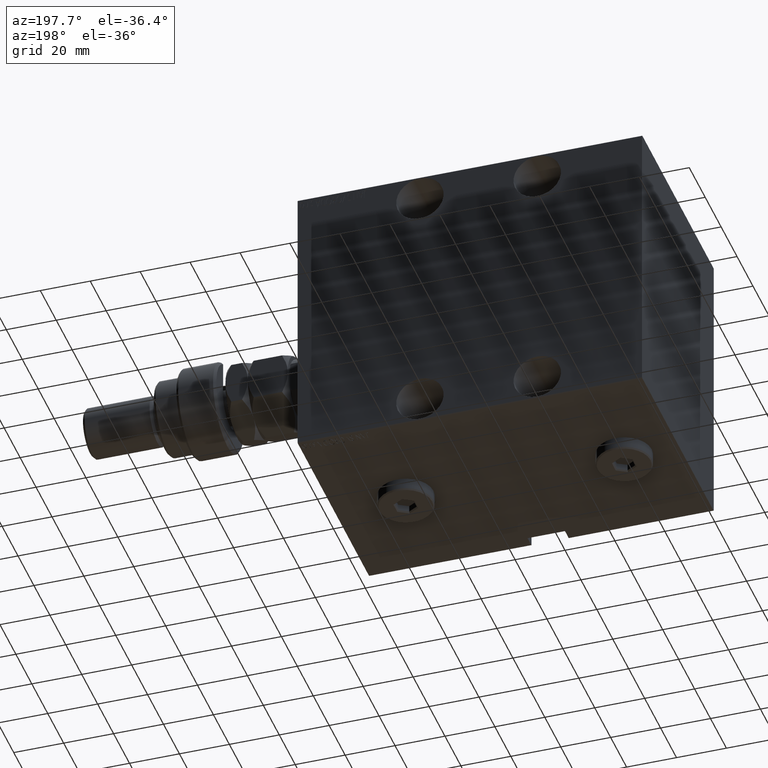
[diagram: clean part render]
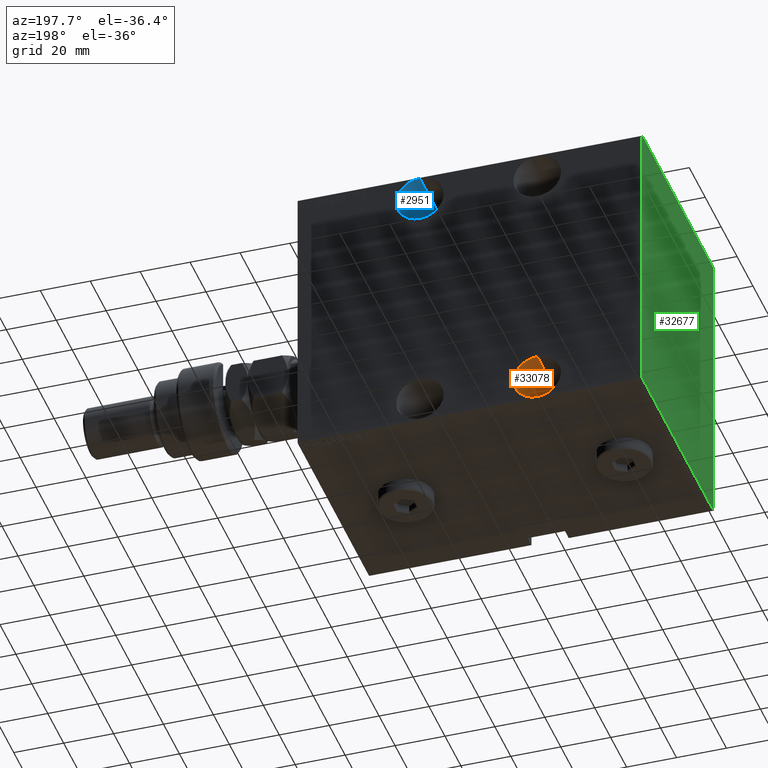
[diagram: same view with three faces highlighted in distinct colors, each labeled with its STEP entity id]
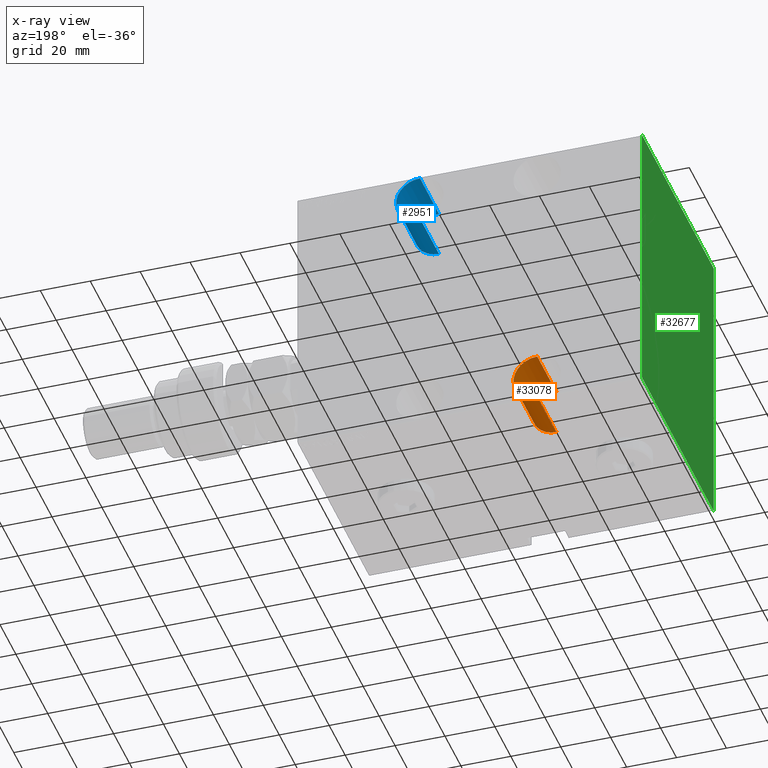
[diagram: x-ray of the same camera — body ghosted, the three highlighted faces saturated]
A machine part, auxiliary view with three faces highlighted in distinct colors.
The next image is the same camera in x-ray (body ghosted, the three faces saturated) — at least one of them is partly hidden behind the body in this view.
Their STEP definitions:

[orange] entity #33078 — the highlighted cylindrical surface (edge-blend (fillet) strip) has radius 9.5 mm, axis along (0, 1, -0).
#128 = CARTESIAN_POINT ( 'NONE',  ( 95.99999999999997158, -45.00000000000000000, -47.50000000000000000 ) ) ;
#2702 = CYLINDRICAL_SURFACE ( 'NONE', #27959, 9.499999999999994671 ) ;
#3069 = CIRCLE ( 'NONE', #29783, 9.499999999999994671 ) ;
#4781 = DIRECTION ( 'NONE',  ( -0.000000000000000000, -1.000000000000000000, -0.000000000000000000 ) ) ;
#7225 = LINE ( 'NONE', #36365, #42357 ) ;
#8899 = VERTEX_POINT ( 'NONE', #9394 ) ;
#9252 = VERTEX_POINT ( 'NONE', #32749 ) ;
#9394 = CARTESIAN_POINT ( 'NONE',  ( 95.99999999999997158, -45.00000000000000000, -38.00000000000000711 ) ) ;
#12749 = FACE_OUTER_BOUND ( 'NONE', #44956, .T. ) ;
#14692 = DIRECTION ( 'NONE',  ( 0.000000000000000000, -1.000000000000000000, 0.000000000000000000 ) ) ;
#17565 = EDGE_CURVE ( 'NONE', #9252, #45311, #3069, .T. ) ;
#19644 = EDGE_CURVE ( 'NONE', #45311, #37850, #40837, .T. ) ;
#21184 = CARTESIAN_POINT ( 'NONE',  ( 95.99999999999997158, -45.00000000000000000, -56.99999999999999289 ) ) ;
#22041 = DIRECTION ( 'NONE',  ( -0.000000000000000000, -1.000000000000000000, -0.000000000000000000 ) ) ;
#22719 = CARTESIAN_POINT ( 'NONE',  ( 95.99999999999997158, -20.99999999999999645, -56.99999999999999289 ) ) ;
#27316 = DIRECTION ( 'NONE',  ( 0.000000000000000000, 0.000000000000000000, -1.000000000000000000 ) ) ;
#27959 = AXIS2_PLACEMENT_3D ( 'NONE', #31622, #39001, #27316 ) ;
#28292 = CARTESIAN_POINT ( 'NONE',  ( 95.99999999999997158, -20.99999999999999645, -56.99999999999999289 ) ) ;
#28875 = CARTESIAN_POINT ( 'NONE',  ( 95.99999999999997158, -20.99999999999999645, -47.50000000000000000 ) ) ;
#29365 = ORIENTED_EDGE ( 'NONE', *, *, #17565, .F. ) ;
#29783 = AXIS2_PLACEMENT_3D ( 'NONE', #28875, #43420, #42461 ) ;
#31622 = CARTESIAN_POINT ( 'NONE',  ( 95.99999999999997158, -20.99999999999999645, -47.50000000000000000 ) ) ;
#32352 = EDGE_CURVE ( 'NONE', #9252, #8899, #7225, .T. ) ;
#32749 = CARTESIAN_POINT ( 'NONE',  ( 95.99999999999997158, -20.99999999999999645, -38.00000000000000711 ) ) ;
#33078 = ADVANCED_FACE ( 'NONE', ( #12749 ), #2702, .F. ) ;
#33729 = ORIENTED_EDGE ( 'NONE', *, *, #34344, .T. ) ;
#34344 = EDGE_CURVE ( 'NONE', #8899, #37850, #36383, .T. ) ;
#35474 = DIRECTION ( 'NONE',  ( 0.000000000000000000, 0.000000000000000000, -1.000000000000000000 ) ) ;
#36365 = CARTESIAN_POINT ( 'NONE',  ( 95.99999999999997158, -20.99999999999999645, -38.00000000000000711 ) ) ;
#36383 = CIRCLE ( 'NONE', #40192, 9.499999999999994671 ) ;
#37850 = VERTEX_POINT ( 'NONE', #21184 ) ;
#39001 = DIRECTION ( 'NONE',  ( -0.000000000000000000, -1.000000000000000000, -0.000000000000000000 ) ) ;
#39104 = ORIENTED_EDGE ( 'NONE', *, *, #19644, .F. ) ;
#39833 = VECTOR ( 'NONE', #4781, 1000.000000000000000 ) ;
#40192 = AXIS2_PLACEMENT_3D ( 'NONE', #128, #14692, #35474 ) ;
#40837 = LINE ( 'NONE', #22719, #39833 ) ;
#42357 = VECTOR ( 'NONE', #22041, 1000.000000000000000 ) ;
#42461 = DIRECTION ( 'NONE',  ( 0.000000000000000000, 0.000000000000000000, -1.000000000000000000 ) ) ;
#43420 = DIRECTION ( 'NONE',  ( 0.000000000000000000, -1.000000000000000000, 0.000000000000000000 ) ) ;
#44956 = EDGE_LOOP ( 'NONE', ( #29365, #46657, #33729, #39104 ) ) ;
#45311 = VERTEX_POINT ( 'NONE', #28292 ) ;
#46657 = ORIENTED_EDGE ( 'NONE', *, *, #32352, .T. ) ;

[blue] entity #2951 — the highlighted cylindrical surface (edge-blend (fillet) strip) has radius 9.5 mm, axis along (0, 1, -0).
#1178 = AXIS2_PLACEMENT_3D ( 'NONE', #10921, #28844, #14259 ) ;
#2951 = ADVANCED_FACE ( 'NONE', ( #22147 ), #30181, .F. ) ;
#4141 = EDGE_CURVE ( 'NONE', #15776, #43340, #9582, .T. ) ;
#5806 = CARTESIAN_POINT ( 'NONE',  ( 49.00000000000000000, -20.99999999999999645, 56.99999999999999289 ) ) ;
#6398 = EDGE_CURVE ( 'NONE', #23209, #43340, #25445, .T. ) ;
#8200 = CARTESIAN_POINT ( 'NONE',  ( 49.00000000000000000, -45.00000000000000000, 37.99999999999999289 ) ) ;
#8261 = ORIENTED_EDGE ( 'NONE', *, *, #4141, .T. ) ;
#8910 = EDGE_CURVE ( 'NONE', #45996, #15776, #23968, .T. ) ;
#9488 = DIRECTION ( 'NONE',  ( 0.000000000000000000, -1.000000000000000000, 0.000000000000000000 ) ) ;
#9582 = CIRCLE ( 'NONE', #36288, 9.500000000000001776 ) ;
#9737 = ORIENTED_EDGE ( 'NONE', *, *, #6398, .F. ) ;
#10921 = CARTESIAN_POINT ( 'NONE',  ( 49.00000000000000000, -20.99999999999999645, 47.49999999999999289 ) ) ;
#13746 = DIRECTION ( 'NONE',  ( -0.000000000000000000, -1.000000000000000000, -0.000000000000000000 ) ) ;
#14259 = DIRECTION ( 'NONE',  ( 0.000000000000000000, 0.000000000000000000, -1.000000000000000000 ) ) ;
#15095 = ORIENTED_EDGE ( 'NONE', *, *, #25874, .F. ) ;
#15776 = VERTEX_POINT ( 'NONE', #25549 ) ;
#18980 = DIRECTION ( 'NONE',  ( 0.000000000000000000, -1.000000000000000000, 0.000000000000000000 ) ) ;
#20483 = DIRECTION ( 'NONE',  ( 0.000000000000000000, 0.000000000000000000, -1.000000000000000000 ) ) ;
#22147 = FACE_OUTER_BOUND ( 'NONE', #28253, .T. ) ;
#23209 = VERTEX_POINT ( 'NONE', #23606 ) ;
#23606 = CARTESIAN_POINT ( 'NONE',  ( 49.00000000000000000, -20.99999999999999645, 37.99999999999999289 ) ) ;
#23968 = LINE ( 'NONE', #5806, #24144 ) ;
#24144 = VECTOR ( 'NONE', #27776, 1000.000000000000000 ) ;
#25445 = LINE ( 'NONE', #42874, #34070 ) ;
#25549 = CARTESIAN_POINT ( 'NONE',  ( 49.00000000000000000, -45.00000000000000000, 56.99999999999999289 ) ) ;
#25874 = EDGE_CURVE ( 'NONE', #45996, #23209, #43535, .T. ) ;
#27776 = DIRECTION ( 'NONE',  ( -0.000000000000000000, -1.000000000000000000, -0.000000000000000000 ) ) ;
#28133 = CARTESIAN_POINT ( 'NONE',  ( 49.00000000000000000, -20.99999999999999645, 47.49999999999999289 ) ) ;
#28253 = EDGE_LOOP ( 'NONE', ( #15095, #33832, #8261, #9737 ) ) ;
#28844 = DIRECTION ( 'NONE',  ( -0.000000000000000000, -1.000000000000000000, -0.000000000000000000 ) ) ;
#29068 = CARTESIAN_POINT ( 'NONE',  ( 49.00000000000000000, -20.99999999999999645, 56.99999999999999289 ) ) ;
#30181 = CYLINDRICAL_SURFACE ( 'NONE', #1178, 9.500000000000001776 ) ;
#30199 = DIRECTION ( 'NONE',  ( 0.000000000000000000, 0.000000000000000000, -1.000000000000000000 ) ) ;
#32106 = AXIS2_PLACEMENT_3D ( 'NONE', #28133, #9488, #20483 ) ;
#33832 = ORIENTED_EDGE ( 'NONE', *, *, #8910, .T. ) ;
#34070 = VECTOR ( 'NONE', #13746, 1000.000000000000000 ) ;
#34242 = CARTESIAN_POINT ( 'NONE',  ( 49.00000000000000000, -45.00000000000000000, 47.49999999999999289 ) ) ;
#36288 = AXIS2_PLACEMENT_3D ( 'NONE', #34242, #18980, #30199 ) ;
#42874 = CARTESIAN_POINT ( 'NONE',  ( 49.00000000000000000, -20.99999999999999645, 37.99999999999999289 ) ) ;
#43340 = VERTEX_POINT ( 'NONE', #8200 ) ;
#43535 = CIRCLE ( 'NONE', #32106, 9.500000000000001776 ) ;
#45996 = VERTEX_POINT ( 'NONE', #29068 ) ;

[green] entity #32677 — the highlighted planar face has unit normal (-1, 0, 0).
#964 = CARTESIAN_POINT ( 'NONE',  ( 138.0000000000000000, -45.00000000000000000, 57.19999999999997442 ) ) ;
#2448 = ORIENTED_EDGE ( 'NONE', *, *, #2982, .T. ) ;
#2982 = EDGE_CURVE ( 'NONE', #44550, #25722, #23945, .T. ) ;
#4435 = VECTOR ( 'NONE', #26631, 1000.000000000000000 ) ;
#5345 = VECTOR ( 'NONE', #24709, 1000.000000000000000 ) ;
#5602 = VERTEX_POINT ( 'NONE', #6508 ) ;
#6508 = CARTESIAN_POINT ( 'NONE',  ( 138.0000000000000000, 44.70000000000001705, 57.50000000000001421 ) ) ;
#6737 = ORIENTED_EDGE ( 'NONE', *, *, #12897, .T. ) ;
#7742 = CARTESIAN_POINT ( 'NONE',  ( 138.0000000000000000, -51.09999999999794795, -51.10000000000267306 ) ) ;
#8053 = FACE_OUTER_BOUND ( 'NONE', #40040, .T. ) ;
#8666 = EDGE_CURVE ( 'NONE', #21735, #44550, #18276, .T. ) ;
#9037 = EDGE_CURVE ( 'NONE', #10790, #21735, #24149, .T. ) ;
#9819 = DIRECTION ( 'NONE',  ( 0.000000000000000000, 1.000000000000000000, 1.541976423090495140E-16 ) ) ;
#10375 = LINE ( 'NONE', #24951, #17488 ) ;
#10790 = VERTEX_POINT ( 'NONE', #39784 ) ;
#11542 = CARTESIAN_POINT ( 'NONE',  ( 138.0000000000000000, 44.69999999999998863, -57.50000000000000711 ) ) ;
#12026 = LINE ( 'NONE', #7742, #28173 ) ;
#12897 = EDGE_CURVE ( 'NONE', #35810, #14974, #37823, .T. ) ;
#13645 = CARTESIAN_POINT ( 'NONE',  ( 138.0000000000000000, -51.09999999999998721, 51.09999999999998721 ) ) ;
#14698 = CARTESIAN_POINT ( 'NONE',  ( 138.0000000000000000, 51.10000000000000853, -51.10000000000000853 ) ) ;
#14974 = VERTEX_POINT ( 'NONE', #15718 ) ;
#15718 = CARTESIAN_POINT ( 'NONE',  ( 138.0000000000000000, -45.00000000000000000, -57.20000000000003126 ) ) ;
#17299 = DIRECTION ( 'NONE',  ( 0.000000000000000000, -1.000000000000000000, -2.312964634635742957E-16 ) ) ;
#17301 = VERTEX_POINT ( 'NONE', #18168 ) ;
#17452 = PLANE ( 'NONE',  #27163 ) ;
#17488 = VECTOR ( 'NONE', #17299, 1000.000000000000000 ) ;
#18168 = CARTESIAN_POINT ( 'NONE',  ( 138.0000000000000000, -44.69999999999994600, 57.49999999999999289 ) ) ;
#18276 = LINE ( 'NONE', #14698, #22705 ) ;
#18847 = ORIENTED_EDGE ( 'NONE', *, *, #8666, .T. ) ;
#19419 = DIRECTION ( 'NONE',  ( 0.000000000000000000, 0.000000000000000000, 1.000000000000000000 ) ) ;
#20565 = CARTESIAN_POINT ( 'NONE',  ( 138.0000000000000000, -45.00000000000000000, -57.50000000000002132 ) ) ;
#20820 = CARTESIAN_POINT ( 'NONE',  ( 138.0000000000000000, 45.00000000000001421, -57.20000000000001705 ) ) ;
#21297 = LINE ( 'NONE', #13645, #42172 ) ;
#21735 = VERTEX_POINT ( 'NONE', #11542 ) ;
#22086 = EDGE_CURVE ( 'NONE', #17301, #35810, #21297, .T. ) ;
#22705 = VECTOR ( 'NONE', #29274, 1000.000000000000114 ) ;
#23945 = LINE ( 'NONE', #34933, #42331 ) ;
#24121 = ORIENTED_EDGE ( 'NONE', *, *, #42345, .T. ) ;
#24149 = LINE ( 'NONE', #20565, #47003 ) ;
#24709 = DIRECTION ( 'NONE',  ( -0.000000000000000000, -0.7071067811865721087, 0.7071067811865230368 ) ) ;
#24951 = CARTESIAN_POINT ( 'NONE',  ( 138.0000000000000000, 45.00000000000001421, 57.50000000000001421 ) ) ;
#25722 = VERTEX_POINT ( 'NONE', #36115 ) ;
#26631 = DIRECTION ( 'NONE',  ( 0.000000000000000000, 0.000000000000000000, -1.000000000000000000 ) ) ;
#26861 = CARTESIAN_POINT ( 'NONE',  ( 138.0000000000000000, -45.00000000000000000, 57.49999999999999289 ) ) ;
#27163 = AXIS2_PLACEMENT_3D ( 'NONE', #32039, #43003, #46584 ) ;
#28173 = VECTOR ( 'NONE', #43789, 999.9999999999998863 ) ;
#28417 = ORIENTED_EDGE ( 'NONE', *, *, #9037, .T. ) ;
#28467 = DIRECTION ( 'NONE',  ( -0.000000000000000000, -0.7071067811865474617, -0.7071067811865474617 ) ) ;
#29274 = DIRECTION ( 'NONE',  ( -0.000000000000000000, 0.7071067811865474617, 0.7071067811865474617 ) ) ;
#32039 = CARTESIAN_POINT ( 'NONE',  ( 138.0000000000000000, 0.000000000000000000, 0.000000000000000000 ) ) ;
#32081 = ORIENTED_EDGE ( 'NONE', *, *, #22086, .T. ) ;
#32677 = ADVANCED_FACE ( 'NONE', ( #8053 ), #17452, .T. ) ;
#34933 = CARTESIAN_POINT ( 'NONE',  ( 138.0000000000000000, 45.00000000000001421, -57.50000000000000711 ) ) ;
#35810 = VERTEX_POINT ( 'NONE', #964 ) ;
#36115 = CARTESIAN_POINT ( 'NONE',  ( 138.0000000000000000, 45.00000000000001421, 57.20000000000001705 ) ) ;
#36354 = ORIENTED_EDGE ( 'NONE', *, *, #39718, .T. ) ;
#37823 = LINE ( 'NONE', #26861, #4435 ) ;
#38733 = ORIENTED_EDGE ( 'NONE', *, *, #39490, .T. ) ;
#39250 = LINE ( 'NONE', #46648, #5345 ) ;
#39490 = EDGE_CURVE ( 'NONE', #5602, #17301, #10375, .T. ) ;
#39718 = EDGE_CURVE ( 'NONE', #14974, #10790, #12026, .T. ) ;
#39784 = CARTESIAN_POINT ( 'NONE',  ( 138.0000000000000000, -44.70000000000000284, -57.50000000000002132 ) ) ;
#40040 = EDGE_LOOP ( 'NONE', ( #28417, #18847, #2448, #24121, #38733, #32081, #6737, #36354 ) ) ;
#42172 = VECTOR ( 'NONE', #28467, 1000.000000000000114 ) ;
#42331 = VECTOR ( 'NONE', #19419, 1000.000000000000000 ) ;
#42345 = EDGE_CURVE ( 'NONE', #25722, #5602, #39250, .T. ) ;
#43003 = DIRECTION ( 'NONE',  ( 1.000000000000000000, 0.000000000000000000, -0.000000000000000000 ) ) ;
#43789 = DIRECTION ( 'NONE',  ( -0.000000000000000000, 0.7071067811865802133, -0.7071067811865149322 ) ) ;
#44550 = VERTEX_POINT ( 'NONE', #20820 ) ;
#46584 = DIRECTION ( 'NONE',  ( -0.000000000000000000, 0.000000000000000000, -1.000000000000000000 ) ) ;
#46648 = CARTESIAN_POINT ( 'NONE',  ( 138.0000000000000000, 51.09999999999846665, 51.10000000000201936 ) ) ;
#47003 = VECTOR ( 'NONE', #9819, 1000.000000000000000 ) ;